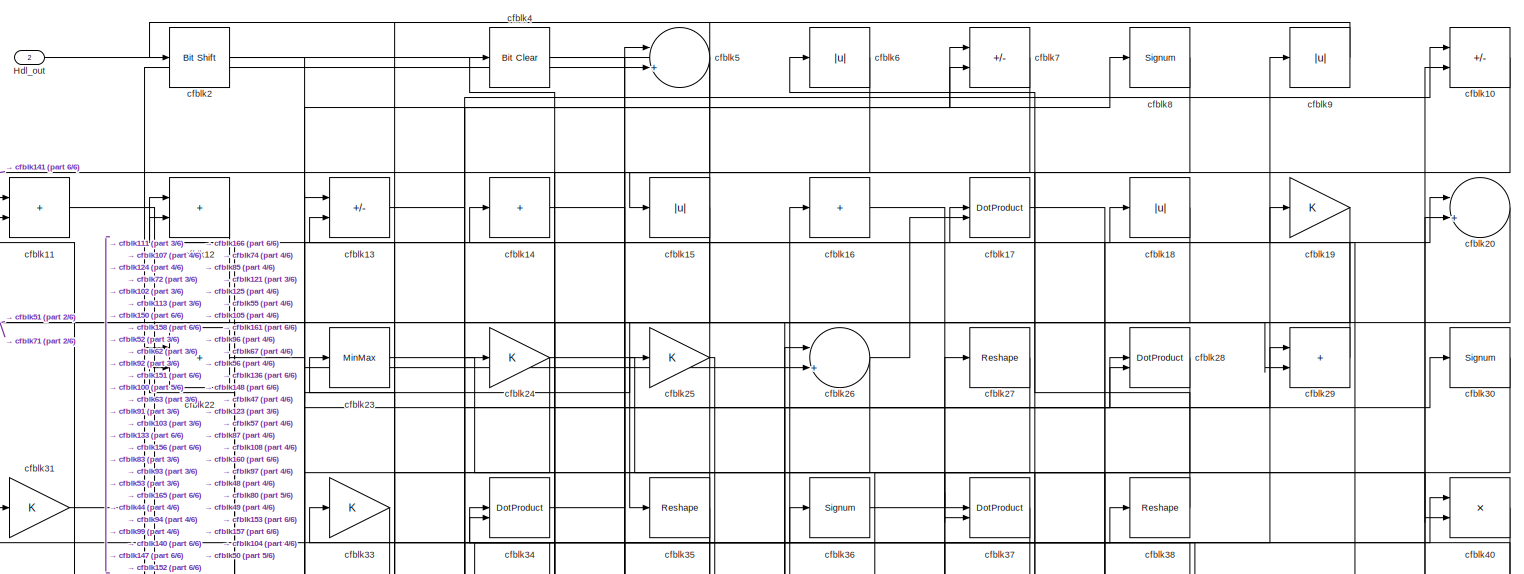
[diagram: root canvas - part 1/6, full width, top band]
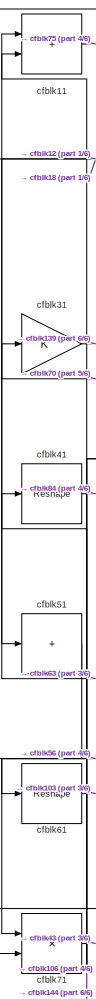
[diagram: root canvas - part 2/6, top left region]
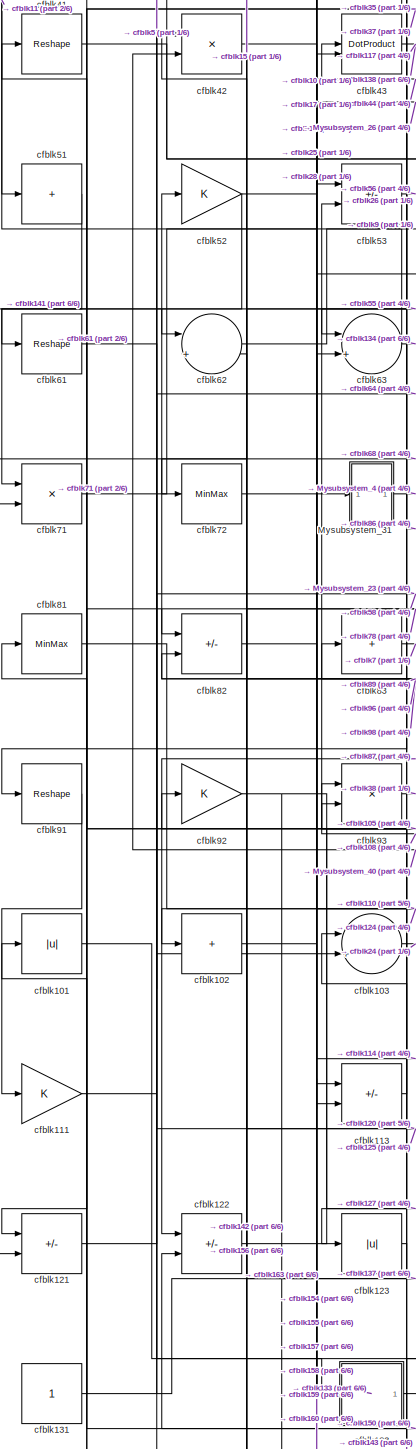
[diagram: root canvas - part 3/6, middle left region]
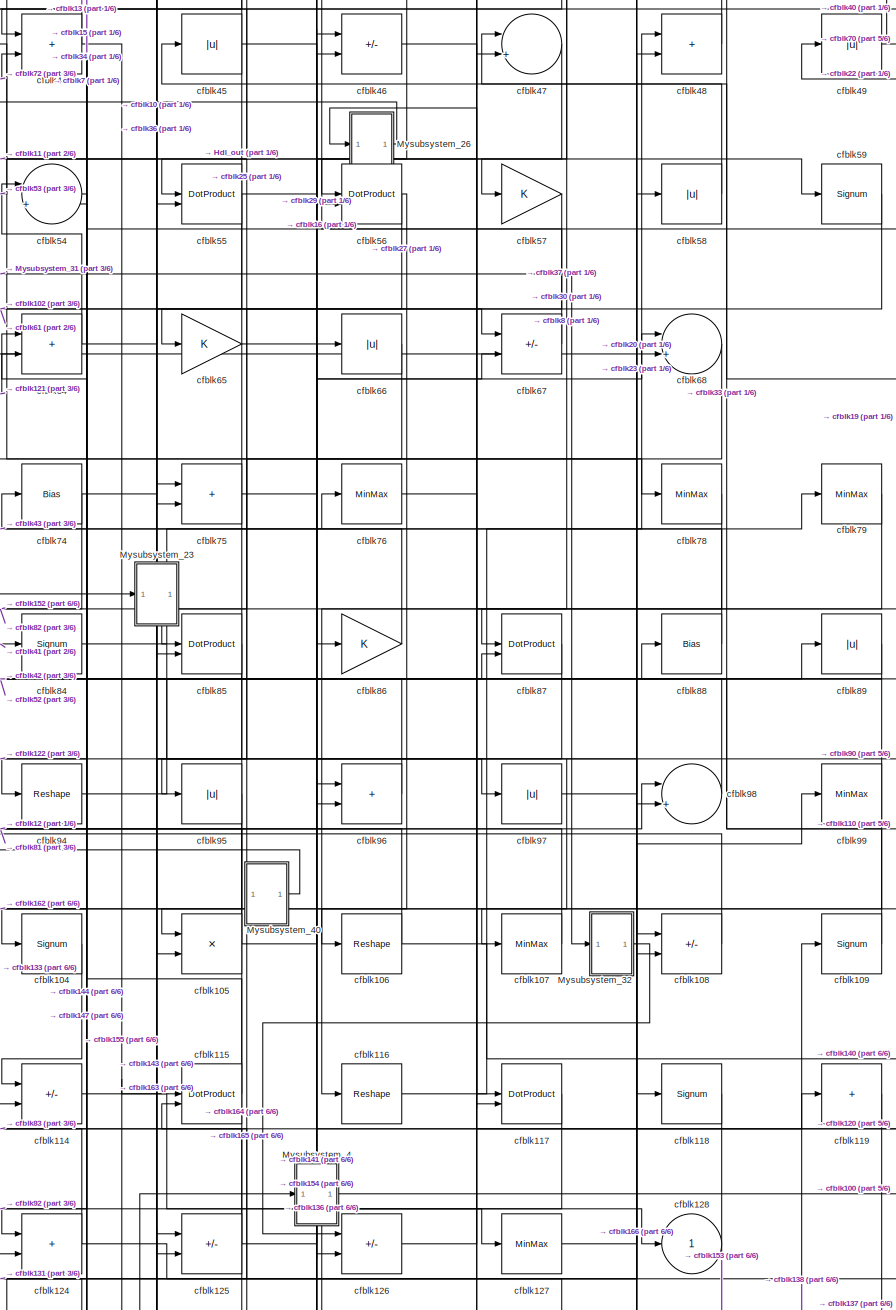
[diagram: root canvas - part 4/6, central region]
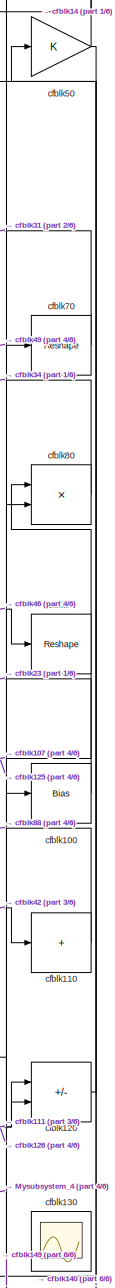
[diagram: root canvas - part 5/6, middle right region]
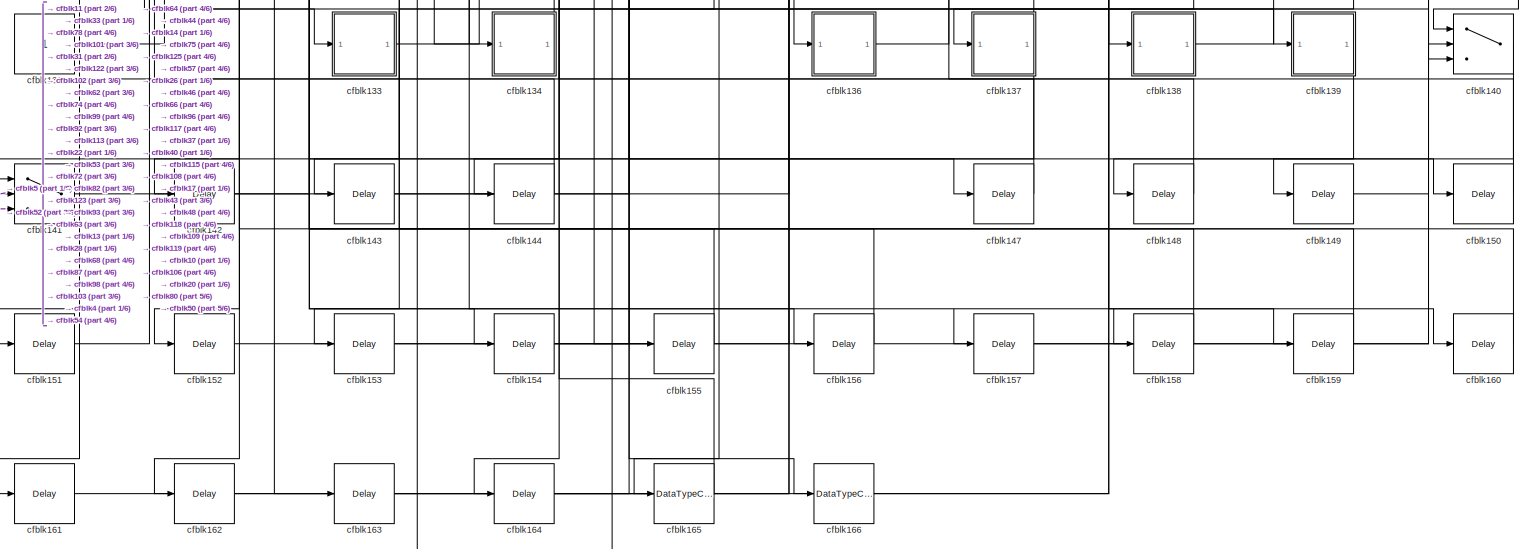
[diagram: root canvas - part 6/6, full width, bottom band]
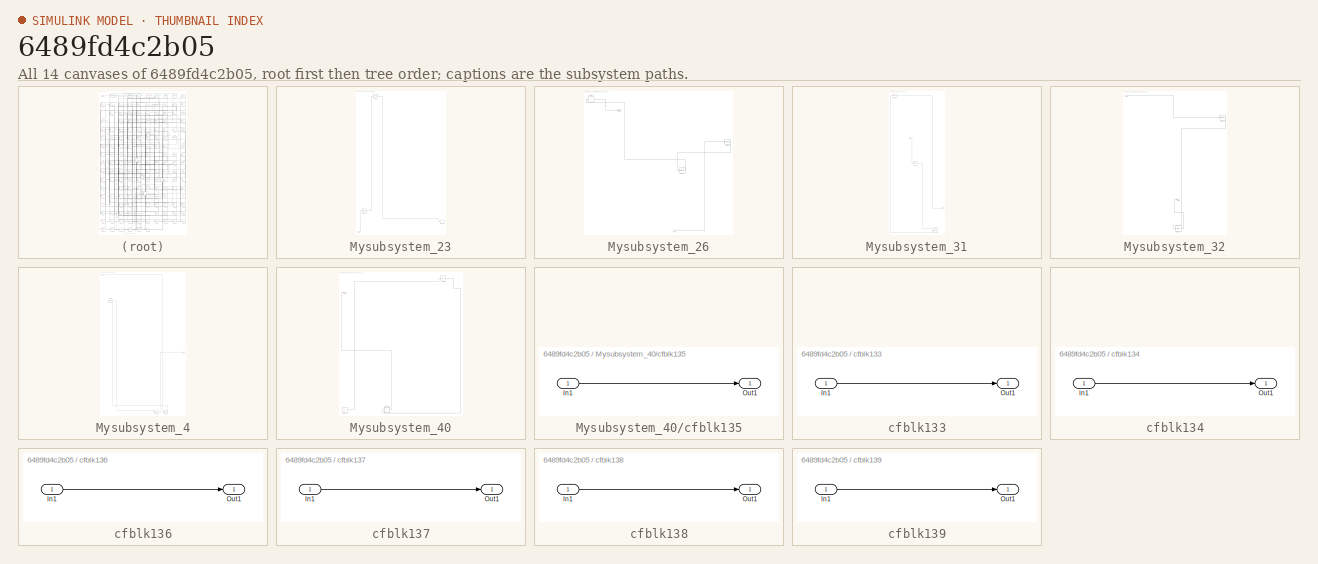
[diagram: thumbnail index - all 14 canvases of the model, root first then tree order]
MODEL slx_6489fd4c2b05
KIND model
CONFIG AbsTol = auto
CONFIG EnableMultiTasking = off
CONFIG FixedStep = auto
CONFIG MaxStep = auto
CONFIG MinStep = auto
CONFIG RelTol = 1e-3
CONFIG SampleTimeConstraint = Unconstrained
CONFIG SolverName = VariableStepAuto
CONFIG StartTime = 0.0
CONFIG StopTime = 10.0
BLOCK [Outport] Hdl_out
  OutDataTypeStr = uint8
  Port = 2
BLOCK [SubSystem] Mysubsystem_23
  RTWFcnName = Mysubsystem_23
  RTWFcnNameOpts = User specified
  RTWFileNameOpts = Use function name
  RTWSystemCode = Reusable function
  TreatAsAtomicUnit = on
BLOCK [Inport] Mysubsystem_23/In1
BLOCK [MinMax] Mysubsystem_23/cfblk112
BLOCK [Terminator] Mysubsystem_23/cfblk129
BLOCK [Reference] Mysubsystem_23/cfblk3  REF=hdlsllib/Logic and Bit
Operations/Detect Rise
Nonnegative
  SourceBlock = hdlsllib/Logic and Bit\nOperations/Detect Rise\nNonnegative
  SourceType = Detect Rise Nonnegative
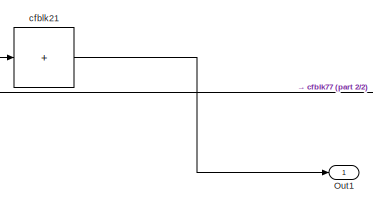
[diagram: Mysubsystem_26 - part 1/2, top left region]
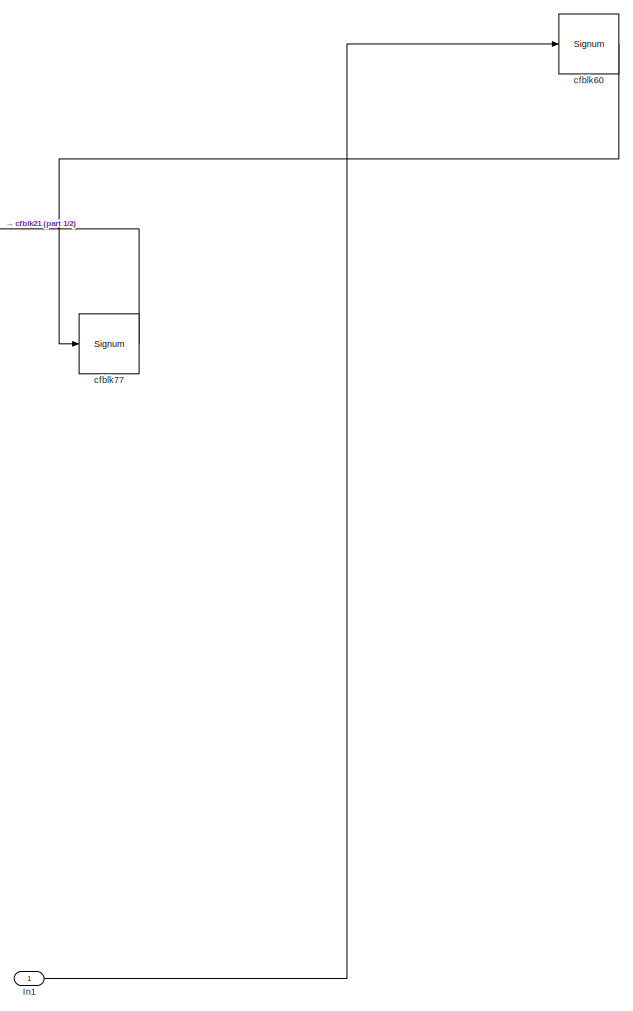
[diagram: Mysubsystem_26 - part 2/2, middle right region]
BLOCK [SubSystem] Mysubsystem_26
  RTWFcnName = Mysubsystem_26
  RTWFcnNameOpts = User specified
  RTWFileNameOpts = Use function name
  RTWSystemCode = Reusable function
  TreatAsAtomicUnit = on
BLOCK [Inport] Mysubsystem_26/In1
BLOCK [Outport] Mysubsystem_26/Out1
BLOCK [Sum] Mysubsystem_26/cfblk21
  IconShape = rectangular
  Inputs = +
BLOCK [Signum] Mysubsystem_26/cfblk60
BLOCK [Signum] Mysubsystem_26/cfblk77
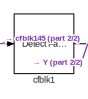
[diagram: Mysubsystem_31 - part 1/2, top left region]
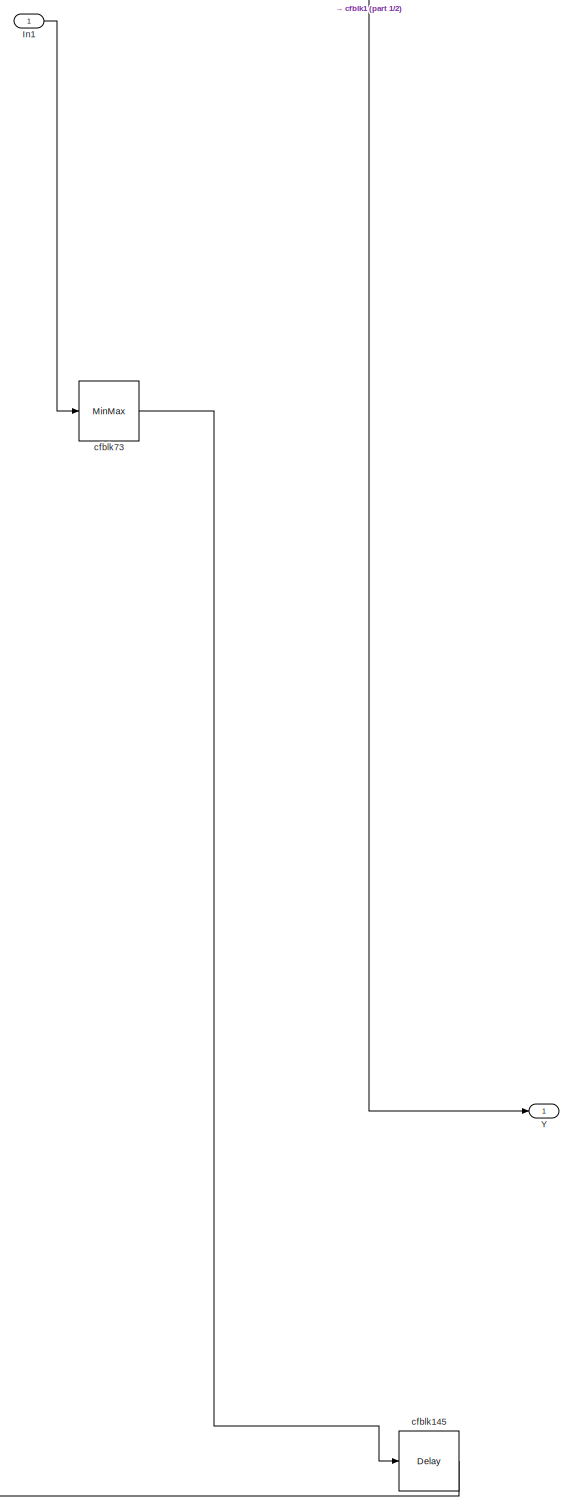
[diagram: Mysubsystem_31 - part 2/2, central region]
BLOCK [SubSystem] Mysubsystem_31
  RTWFcnName = Mysubsystem_31
  RTWFcnNameOpts = User specified
  RTWFileNameOpts = Use function name
  RTWSystemCode = Reusable function
  TreatAsAtomicUnit = on
BLOCK [Inport] Mysubsystem_31/In1
BLOCK [Outport] Mysubsystem_31/Y
BLOCK [Reference] Mysubsystem_31/cfblk1  REF=hdlsllib/Logic and Bit
Operations/Detect Fall
Nonpositive
  SourceBlock = hdlsllib/Logic and Bit\nOperations/Detect Fall\nNonpositive
  SourceType = Detect Fall Nonpositive
BLOCK [Delay] Mysubsystem_31/cfblk145
  InputPortMap = u0
  SampleTime = 1
BLOCK [MinMax] Mysubsystem_31/cfblk73
BLOCK [SubSystem] Mysubsystem_32
  RTWFcnName = Mysubsystem_32
  RTWFcnNameOpts = User specified
  RTWFileNameOpts = Use function name
  RTWSystemCode = Reusable function
  TreatAsAtomicUnit = on
BLOCK [Inport] Mysubsystem_32/In1
BLOCK [Outport] Mysubsystem_32/Out1
BLOCK [Delay] Mysubsystem_32/cfblk146
  InputPortMap = u0
  SampleTime = 1
BLOCK [MinMax] Mysubsystem_32/cfblk69
BLOCK [SubSystem] Mysubsystem_4
  RTWFcnName = Mysubsystem_4
  RTWFcnNameOpts = User specified
  RTWFileNameOpts = Use function name
  RTWSystemCode = Reusable function
  TreatAsAtomicUnit = on
BLOCK [Inport] Mysubsystem_4/In1
BLOCK [Outport] Mysubsystem_4/Out1
BLOCK [DataTypeConversion] Mysubsystem_4/cfblk167
  OutDataTypeStr = uint8
  RndMeth = Floor
  SaturateOnIntegerOverflow = off
BLOCK [DataTypeConversion] Mysubsystem_4/cfblk168
  OutDataTypeStr = uint8
  RndMeth = Floor
  SaturateOnIntegerOverflow = off
BLOCK [MinMax] Mysubsystem_4/cfblk32
BLOCK [SubSystem] Mysubsystem_40
  RTWFcnName = Mysubsystem_40
  RTWFcnNameOpts = User specified
  RTWFileNameOpts = Use function name
  RTWSystemCode = Reusable function
  TreatAsAtomicUnit = on
BLOCK [Outport] Mysubsystem_40/Out1
BLOCK [Constant] Mysubsystem_40/cfblk132
  SampleTime = -1
BLOCK [SubSystem] Mysubsystem_40/cfblk135
  LibrarySourceBlock = hdlsllib/Ports &\nSubsystems/Subsystem
BLOCK [Inport] Mysubsystem_40/cfblk135/In1
BLOCK [Outport] Mysubsystem_40/cfblk135/Out1
BLOCK [Abs] Mysubsystem_40/cfblk39
  SaturateOnIntegerOverflow = off
BLOCK [Sum] cfblk10
  IconShape = rectangular
  Inputs = +-
  OutDataTypeStr = uint8
BLOCK [Bias] cfblk100
  Bias = 0.0
  SaturateOnIntegerOverflow = off
BLOCK [Abs] cfblk101
  OutDataTypeStr = uint8
  SaturateOnIntegerOverflow = off
BLOCK [Sum] cfblk102
  IconShape = rectangular
  Inputs = +
  OutDataTypeStr = uint8
BLOCK [Sum] cfblk103
  Inputs = |++
  OutDataTypeStr = uint8
BLOCK [Signum] cfblk104
BLOCK [Product] cfblk105
  Inputs = */
  OutDataTypeStr = uint8
  RndMeth = Zero
  SaturateOnIntegerOverflow = on
BLOCK [Reshape] cfblk106
BLOCK [MinMax] cfblk107
  OutDataTypeStr = uint8
BLOCK [Sum] cfblk108
  IconShape = rectangular
  Inputs = +-
  OutDataTypeStr = uint8
BLOCK [Signum] cfblk109
BLOCK [Sum] cfblk11
  IconShape = rectangular
  OutDataTypeStr = uint8
BLOCK [Sum] cfblk110
  IconShape = rectangular
  Inputs = +
  OutDataTypeStr = uint8
BLOCK [Gain] cfblk111
  OutDataTypeStr = uint8
BLOCK [Sum] cfblk113
  IconShape = rectangular
  Inputs = +-
  OutDataTypeStr = uint8
BLOCK [Sum] cfblk114
  IconShape = rectangular
  Inputs = +-
  OutDataTypeStr = uint8
BLOCK [DotProduct] cfblk115
  OutDataTypeStr = uint8
BLOCK [Reshape] cfblk116
BLOCK [DotProduct] cfblk117
  OutDataTypeStr = uint8
BLOCK [Signum] cfblk118
BLOCK [Sum] cfblk119
  IconShape = rectangular
  Inputs = +
  OutDataTypeStr = uint8
BLOCK [Sum] cfblk12
  IconShape = rectangular
  OutDataTypeStr = uint8
BLOCK [Sum] cfblk120
  IconShape = rectangular
  Inputs = +-
  OutDataTypeStr = uint8
BLOCK [Sum] cfblk121
  IconShape = rectangular
  Inputs = +-
  OutDataTypeStr = uint8
BLOCK [Sum] cfblk122
  IconShape = rectangular
  Inputs = +-
  OutDataTypeStr = uint8
BLOCK [Abs] cfblk123
  OutDataTypeStr = uint8
  SaturateOnIntegerOverflow = off
BLOCK [Sum] cfblk124
  IconShape = rectangular
  OutDataTypeStr = uint8
BLOCK [Sum] cfblk125
  IconShape = rectangular
  Inputs = +-
  OutDataTypeStr = uint8
BLOCK [Sum] cfblk126
  IconShape = rectangular
  Inputs = +-
  OutDataTypeStr = uint8
BLOCK [MinMax] cfblk127
  OutDataTypeStr = uint8
BLOCK [Outport] cfblk128
  OutDataTypeStr = uint8
  VectorParamsAs1DForOutWhenUnconnected = off
BLOCK [Sum] cfblk13
  IconShape = rectangular
  Inputs = +-
  OutDataTypeStr = uint8
BLOCK [Scope] cfblk130
  Floating = on
  NumInputPorts = 1
  ScopeSpecificationString = Simulink.scopes.TimeScopeBlockCfg('CurrentConfiguration', extmgr.ConfigurationSet(extmgr.Configuration('Core','General UI',true,'FigureColor',[0.156862745098039 0.156862745098039 0.156862745098039]),extmgr.Configuration('Core','Source UI',true),extmgr.Configuration('Sources','WiredSimulink',true,'DataLoggingVariableName','ScopeData1','DataLoggingSaveFormat','StructureWithTime','DataLoggingLimitDat...<+2713ch>
BLOCK [Constant] cfblk131
  OutDataTypeStr = uint8
  SampleTime = -1
BLOCK [SubSystem] cfblk133
  LibrarySourceBlock = hdlsllib/Ports &\nSubsystems/Subsystem
BLOCK [Inport] cfblk133/In1
BLOCK [Outport] cfblk133/Out1
BLOCK [SubSystem] cfblk134
  LibrarySourceBlock = hdlsllib/Ports &\nSubsystems/Subsystem
BLOCK [Inport] cfblk134/In1
BLOCK [Outport] cfblk134/Out1
BLOCK [SubSystem] cfblk136
  LibrarySourceBlock = hdlsllib/Ports &\nSubsystems/Subsystem
BLOCK [Inport] cfblk136/In1
BLOCK [Outport] cfblk136/Out1
BLOCK [SubSystem] cfblk137
  LibrarySourceBlock = hdlsllib/Ports &\nSubsystems/Subsystem
BLOCK [Inport] cfblk137/In1
BLOCK [Outport] cfblk137/Out1
BLOCK [SubSystem] cfblk138
  LibrarySourceBlock = hdlsllib/Ports &\nSubsystems/Subsystem
BLOCK [Inport] cfblk138/In1
BLOCK [Outport] cfblk138/Out1
BLOCK [SubSystem] cfblk139
  LibrarySourceBlock = hdlsllib/Ports &\nSubsystems/Subsystem
BLOCK [Inport] cfblk139/In1
BLOCK [Outport] cfblk139/Out1
BLOCK [Sum] cfblk14
  IconShape = rectangular
  Inputs = +
  OutDataTypeStr = uint8
BLOCK [Switch] cfblk140
  InputSameDT = off
  OutDataTypeStr = uint8
  SaturateOnIntegerOverflow = off
BLOCK [Switch] cfblk141
  InputSameDT = off
  OutDataTypeStr = uint8
  SaturateOnIntegerOverflow = off
BLOCK [Delay] cfblk142
  InputPortMap = u0
  SampleTime = 1
BLOCK [Delay] cfblk143
  InputPortMap = u0
  SampleTime = 1
BLOCK [Delay] cfblk144
  InputPortMap = u0
  SampleTime = 1
BLOCK [Delay] cfblk147
  InputPortMap = u0
  SampleTime = 1
BLOCK [Delay] cfblk148
  InputPortMap = u0
  SampleTime = 1
BLOCK [Delay] cfblk149
  InputPortMap = u0
  SampleTime = 1
BLOCK [Abs] cfblk15
  OutDataTypeStr = uint8
  SaturateOnIntegerOverflow = off
BLOCK [Delay] cfblk150
  InputPortMap = u0
  SampleTime = 1
BLOCK [Delay] cfblk151
  InputPortMap = u0
  SampleTime = 1
BLOCK [Delay] cfblk152
  InputPortMap = u0
  SampleTime = 1
BLOCK [Delay] cfblk153
  InputPortMap = u0
  SampleTime = 1
BLOCK [Delay] cfblk154
  InputPortMap = u0
  SampleTime = 1
BLOCK [Delay] cfblk155
  InputPortMap = u0
  SampleTime = 1
BLOCK [Delay] cfblk156
  InputPortMap = u0
  SampleTime = 1
BLOCK [Delay] cfblk157
  InputPortMap = u0
  SampleTime = 1
BLOCK [Delay] cfblk158
  InputPortMap = u0
  SampleTime = 1
BLOCK [Delay] cfblk159
  InputPortMap = u0
  SampleTime = 1
BLOCK [Sum] cfblk16
  IconShape = rectangular
  Inputs = +
  OutDataTypeStr = uint8
BLOCK [Delay] cfblk160
  InputPortMap = u0
  SampleTime = 1
BLOCK [Delay] cfblk161
  InputPortMap = u0
  SampleTime = 1
BLOCK [Delay] cfblk162
  InputPortMap = u0
  SampleTime = 1
BLOCK [Delay] cfblk163
  InputPortMap = u0
  SampleTime = 1
BLOCK [Delay] cfblk164
  InputPortMap = u0
  SampleTime = 1
BLOCK [DataTypeConversion] cfblk165
  OutDataTypeStr = uint8
  RndMeth = Floor
  SaturateOnIntegerOverflow = off
BLOCK [DataTypeConversion] cfblk166
  OutDataTypeStr = uint8
  RndMeth = Floor
  SaturateOnIntegerOverflow = off
BLOCK [DotProduct] cfblk17
  OutDataTypeStr = uint8
BLOCK [Abs] cfblk18
  OutDataTypeStr = uint8
  SaturateOnIntegerOverflow = off
BLOCK [Gain] cfblk19
  OutDataTypeStr = uint8
BLOCK [Reference] cfblk2  REF=hdlsllib/Logic and Bit
Operations/Bit Shift
  SourceBlock = hdlsllib/Logic and Bit\nOperations/Bit Shift
  SourceType = Bit Shift
BLOCK [Sum] cfblk20
  Inputs = |++
  OutDataTypeStr = uint8
BLOCK [Sum] cfblk22
  IconShape = rectangular
  OutDataTypeStr = uint8
BLOCK [MinMax] cfblk23
  OutDataTypeStr = uint8
BLOCK [Gain] cfblk24
  OutDataTypeStr = uint8
BLOCK [Gain] cfblk25
  OutDataTypeStr = uint8
BLOCK [Sum] cfblk26
  Inputs = |++
  OutDataTypeStr = uint8
BLOCK [Reshape] cfblk27
BLOCK [DotProduct] cfblk28
  OutDataTypeStr = uint8
BLOCK [Sum] cfblk29
  IconShape = rectangular
  OutDataTypeStr = uint8
BLOCK [Signum] cfblk30
BLOCK [Gain] cfblk31
  OutDataTypeStr = uint8
BLOCK [Gain] cfblk33
  OutDataTypeStr = uint8
BLOCK [DotProduct] cfblk34
  OutDataTypeStr = uint8
BLOCK [Reshape] cfblk35
BLOCK [Signum] cfblk36
BLOCK [DotProduct] cfblk37
  OutDataTypeStr = uint8
BLOCK [Reshape] cfblk38
BLOCK [Reference] cfblk4  REF=simulink/Logic and Bit
Operations/Bit Clear
  LibrarySourceBlock = hdlsllib/Logic and Bit\nOperations/Bit Clear
  SourceBlock = simulink/Logic and Bit\nOperations/Bit Clear
  SourceType = Bit Clear
BLOCK [Product] cfblk40
  Inputs = */
  OutDataTypeStr = uint8
  RndMeth = Zero
  SaturateOnIntegerOverflow = on
BLOCK [Reshape] cfblk41
BLOCK [Product] cfblk42
  Inputs = */
  OutDataTypeStr = uint8
  RndMeth = Zero
  SaturateOnIntegerOverflow = on
BLOCK [DotProduct] cfblk43
  OutDataTypeStr = uint8
BLOCK [Sum] cfblk44
  IconShape = rectangular
  OutDataTypeStr = uint8
BLOCK [Abs] cfblk45
  OutDataTypeStr = uint8
  SaturateOnIntegerOverflow = off
BLOCK [Sum] cfblk46
  IconShape = rectangular
  Inputs = +-
  OutDataTypeStr = uint8
BLOCK [Sum] cfblk47
  Inputs = |++
  OutDataTypeStr = uint8
BLOCK [Sum] cfblk48
  IconShape = rectangular
  OutDataTypeStr = uint8
BLOCK [Abs] cfblk49
  OutDataTypeStr = uint8
  SaturateOnIntegerOverflow = off
BLOCK [Sum] cfblk5
  Inputs = |++
  OutDataTypeStr = uint8
BLOCK [Gain] cfblk50
  OutDataTypeStr = uint8
BLOCK [Sum] cfblk51
  IconShape = rectangular
  Inputs = +
  OutDataTypeStr = uint8
BLOCK [Gain] cfblk52
  OutDataTypeStr = uint8
BLOCK [Sum] cfblk53
  IconShape = rectangular
  Inputs = +-
  OutDataTypeStr = uint8
BLOCK [Sum] cfblk54
  Inputs = |++
  OutDataTypeStr = uint8
BLOCK [DotProduct] cfblk55
  OutDataTypeStr = uint8
BLOCK [DotProduct] cfblk56
  OutDataTypeStr = uint8
BLOCK [Gain] cfblk57
  OutDataTypeStr = uint8
BLOCK [Abs] cfblk58
  OutDataTypeStr = uint8
  SaturateOnIntegerOverflow = off
BLOCK [Signum] cfblk59
BLOCK [Abs] cfblk6
  OutDataTypeStr = uint8
  SaturateOnIntegerOverflow = off
BLOCK [Reshape] cfblk61
BLOCK [Sum] cfblk62
  Inputs = |++
  OutDataTypeStr = uint8
BLOCK [Sum] cfblk63
  Inputs = |++
  OutDataTypeStr = uint8
BLOCK [Sum] cfblk64
  IconShape = rectangular
  OutDataTypeStr = uint8
BLOCK [Gain] cfblk65
  OutDataTypeStr = uint8
BLOCK [Abs] cfblk66
  OutDataTypeStr = uint8
  SaturateOnIntegerOverflow = off
BLOCK [Sum] cfblk67
  IconShape = rectangular
  Inputs = +-
  OutDataTypeStr = uint8
BLOCK [Sum] cfblk68
  Inputs = |++
  OutDataTypeStr = uint8
BLOCK [Sum] cfblk7
  IconShape = rectangular
  Inputs = +-
  OutDataTypeStr = uint8
BLOCK [Reshape] cfblk70
BLOCK [Product] cfblk71
  Inputs = */
  OutDataTypeStr = uint8
  RndMeth = Zero
  SaturateOnIntegerOverflow = on
BLOCK [MinMax] cfblk72
  OutDataTypeStr = uint8
BLOCK [Bias] cfblk74
  Bias = 0.0
  SaturateOnIntegerOverflow = off
BLOCK [Sum] cfblk75
  IconShape = rectangular
  OutDataTypeStr = uint8
BLOCK [MinMax] cfblk76
  OutDataTypeStr = uint8
BLOCK [MinMax] cfblk78
  OutDataTypeStr = uint8
BLOCK [MinMax] cfblk79
  OutDataTypeStr = uint8
BLOCK [Signum] cfblk8
BLOCK [Product] cfblk80
  Inputs = */
  OutDataTypeStr = uint8
  RndMeth = Zero
  SaturateOnIntegerOverflow = on
BLOCK [MinMax] cfblk81
  OutDataTypeStr = uint8
BLOCK [Sum] cfblk82
  IconShape = rectangular
  Inputs = +-
  OutDataTypeStr = uint8
BLOCK [Sum] cfblk83
  IconShape = rectangular
  Inputs = +
  OutDataTypeStr = uint8
BLOCK [Signum] cfblk84
BLOCK [DotProduct] cfblk85
  OutDataTypeStr = uint8
BLOCK [Gain] cfblk86
  OutDataTypeStr = uint8
BLOCK [DotProduct] cfblk87
  OutDataTypeStr = uint8
BLOCK [Bias] cfblk88
  Bias = 0.0
  SaturateOnIntegerOverflow = off
BLOCK [Abs] cfblk89
  OutDataTypeStr = uint8
  SaturateOnIntegerOverflow = off
BLOCK [Abs] cfblk9
  OutDataTypeStr = uint8
  SaturateOnIntegerOverflow = off
BLOCK [Reshape] cfblk90
BLOCK [Reshape] cfblk91
BLOCK [Gain] cfblk92
  OutDataTypeStr = uint8
BLOCK [Product] cfblk93
  Inputs = */
  OutDataTypeStr = uint8
  RndMeth = Zero
  SaturateOnIntegerOverflow = on
BLOCK [Reshape] cfblk94
BLOCK [Abs] cfblk95
  OutDataTypeStr = uint8
  SaturateOnIntegerOverflow = off
BLOCK [Sum] cfblk96
  IconShape = rectangular
  OutDataTypeStr = uint8
BLOCK [Abs] cfblk97
  OutDataTypeStr = uint8
  SaturateOnIntegerOverflow = off
BLOCK [Sum] cfblk98
  Inputs = |++
  OutDataTypeStr = uint8
BLOCK [MinMax] cfblk99
  OutDataTypeStr = uint8
LINE Mysubsystem_23/In1:1 -> Mysubsystem_23/cfblk112:1
LINE Mysubsystem_23/cfblk112:1 -> Mysubsystem_23/cfblk3:1
LINE Mysubsystem_23/cfblk3:1 -> Mysubsystem_23/cfblk129:1
LINE Mysubsystem_26/In1:1 -> Mysubsystem_26/cfblk60:1
LINE Mysubsystem_26/cfblk21:1 -> Mysubsystem_26/Out1:1
LINE Mysubsystem_26/cfblk60:1 -> Mysubsystem_26/cfblk77:1
LINE Mysubsystem_26/cfblk77:1 -> Mysubsystem_26/cfblk21:1
NET Mysubsystem_26:1 -> Mysubsystem_31:1, Mysubsystem_32:1
LINE Mysubsystem_31/In1:1 -> Mysubsystem_31/cfblk73:1
LINE Mysubsystem_31/cfblk145:1 -> Mysubsystem_31/cfblk1:1
LINE Mysubsystem_31/cfblk1:1 -> Mysubsystem_31/Y:1
LINE Mysubsystem_31/cfblk73:1 -> Mysubsystem_31/cfblk145:1
LINE Mysubsystem_31:1 -> Mysubsystem_4:1
LINE Mysubsystem_32/In1:1 -> Mysubsystem_32/cfblk69:1
LINE Mysubsystem_32/cfblk146:1 -> Mysubsystem_32/Out1:1
LINE Mysubsystem_32/cfblk69:1 -> Mysubsystem_32/cfblk146:1
LINE Mysubsystem_32:1 -> cfblk126:1
LINE Mysubsystem_4/In1:1 -> Mysubsystem_4/cfblk168:1
LINE Mysubsystem_4/cfblk167:1 -> Mysubsystem_4/Out1:1
LINE Mysubsystem_4/cfblk168:1 -> Mysubsystem_4/cfblk32:1
LINE Mysubsystem_4/cfblk32:1 -> Mysubsystem_4/cfblk167:1
LINE Mysubsystem_40/cfblk132:1 -> Mysubsystem_40/cfblk39:1
LINE Mysubsystem_40/cfblk135/In1:1 -> Mysubsystem_40/cfblk135/Out1:1
LINE Mysubsystem_40/cfblk135:1 -> Mysubsystem_40/Out1:1
LINE Mysubsystem_40/cfblk39:1 -> Mysubsystem_40/cfblk135:1
LINE Mysubsystem_40:1 -> cfblk42:2
LINE Mysubsystem_4:1 -> cfblk100:1
LINE cfblk100:1 -> cfblk23:1
LINE cfblk101:1 -> cfblk133:1
NET cfblk102:1 -> cfblk114:2, cfblk142:1, cfblk28:1
LINE cfblk103:1 -> cfblk24:1
LINE cfblk104:1 -> cfblk114:1
NET cfblk105:1 -> cfblk29:1, cfblk81:1
NET cfblk106:1 -> cfblk140:3, cfblk41:1
LINE cfblk107:1 -> cfblk12:2
LINE cfblk108:1 -> cfblk53:2
LINE cfblk109:1 -> cfblk47:1
LINE cfblk10:1 -> cfblk55:2
LINE cfblk110:1 -> cfblk88:1
NET cfblk111:1 -> cfblk120:2, cfblk5:2
LINE cfblk113:1 -> cfblk93:1
LINE cfblk114:1 -> cfblk128:1
LINE cfblk115:1 -> cfblk54:2
LINE cfblk116:1 -> cfblk48:1
LINE cfblk117:1 -> cfblk136:1
LINE cfblk118:1 -> cfblk153:1
LINE cfblk119:1 -> cfblk137:1
LINE cfblk11:1 -> cfblk75:2
LINE cfblk120:1 -> cfblk50:1
LINE cfblk121:1 -> cfblk64:1
LINE cfblk122:1 -> cfblk98:1
LINE cfblk123:1 -> cfblk143:1
NET cfblk124:1 -> cfblk22:2, cfblk49:1
NET cfblk125:1 -> Hdl_out:1, cfblk119:1, cfblk164:1, cfblk67:2, cfblk83:1
NET cfblk126:1 -> Mysubsystem_26:1, cfblk120:1
LINE cfblk127:1 -> cfblk99:1
LINE cfblk12:1 -> cfblk71:2
NET cfblk131:1 -> Mysubsystem_23:1, cfblk101:1, cfblk58:1
LINE cfblk133/In1:1 -> cfblk133/Out1:1
NET cfblk133:1 -> cfblk28:2, cfblk68:2, cfblk87:2, cfblk98:2
LINE cfblk134/In1:1 -> cfblk134/Out1:1
LINE cfblk134:1 -> cfblk103:1
LINE cfblk136/In1:1 -> cfblk136/Out1:1
LINE cfblk136:1 -> cfblk40:1
LINE cfblk137/In1:1 -> cfblk137/Out1:1
NET cfblk137:1 -> cfblk115:2, cfblk161:1, cfblk92:1
LINE cfblk138/In1:1 -> cfblk138/Out1:1
LINE cfblk138:1 -> cfblk109:1
LINE cfblk139/In1:1 -> cfblk139/Out1:1
LINE cfblk139:1 -> cfblk149:1
NET cfblk13:1 -> cfblk156:1, cfblk29:2, cfblk7:2
LINE cfblk140:1 -> cfblk148:1
LINE cfblk141:1 -> cfblk66:1
LINE cfblk142:1 -> cfblk63:2
LINE cfblk143:1 -> cfblk75:1
LINE cfblk144:1 -> cfblk11:2
LINE cfblk147:1 -> cfblk64:2
LINE cfblk148:1 -> cfblk37:1
LINE cfblk149:1 -> cfblk80:2
NET cfblk14:1 -> cfblk140:2, cfblk147:1
LINE cfblk150:1 -> cfblk122:2
LINE cfblk151:1 -> cfblk22:1
LINE cfblk152:1 -> cfblk5:1
LINE cfblk153:1 -> cfblk10:2
LINE cfblk154:1 -> cfblk96:1
LINE cfblk155:1 -> cfblk113:1
LINE cfblk156:1 -> cfblk62:2
LINE cfblk157:1 -> cfblk20:2
LINE cfblk158:1 -> cfblk13:1
LINE cfblk159:1 -> cfblk93:2
NET cfblk15:1 -> cfblk44:1, cfblk72:1
LINE cfblk160:1 -> cfblk53:1
LINE cfblk161:1 -> cfblk26:1
LINE cfblk162:1 -> cfblk46:2
LINE cfblk163:1 -> cfblk125:1
LINE cfblk164:1 -> cfblk108:2
LINE cfblk165:1 -> cfblk4:1
LINE cfblk166:1 -> cfblk48:2
LINE cfblk16:1 -> cfblk47:2
LINE cfblk17:1 -> cfblk160:1
LINE cfblk18:1 -> cfblk51:1
LINE cfblk19:1 -> cfblk35:1
NET cfblk20:1 -> cfblk124:1, cfblk85:2, cfblk96:2
NET cfblk22:1 -> cfblk150:1, cfblk8:1
LINE cfblk23:1 -> cfblk108:1
NET cfblk24:1 -> cfblk113:2, cfblk40:2
LINE cfblk25:1 -> cfblk55:1
NET cfblk26:1 -> cfblk17:2, cfblk63:1
LINE cfblk27:1 -> cfblk56:1
LINE cfblk28:1 -> cfblk37:2
LINE cfblk29:1 -> cfblk12:1
LINE cfblk2:1 -> cfblk26:2
LINE cfblk30:1 -> cfblk87:1
LINE cfblk31:1 -> cfblk139:1
LINE cfblk33:1 -> cfblk151:1
LINE cfblk34:1 -> cfblk30:1
LINE cfblk35:1 -> cfblk121:1
LINE cfblk36:1 -> cfblk27:1
NET cfblk37:1 -> cfblk123:1, cfblk85:1
LINE cfblk38:1 -> cfblk6:1
LINE cfblk40:1 -> cfblk104:1
LINE cfblk41:1 -> cfblk84:1
LINE cfblk42:1 -> cfblk110:1
NET cfblk43:1 -> cfblk117:2, cfblk138:1
NET cfblk44:1 -> cfblk115:1, cfblk13:2, cfblk155:1
LINE cfblk45:1 -> cfblk86:1
LINE cfblk46:1 -> cfblk90:1
LINE cfblk47:1 -> cfblk126:2
LINE cfblk48:1 -> cfblk33:1
NET cfblk49:1 -> cfblk19:1, cfblk70:1
LINE cfblk4:1 -> cfblk166:1
NET cfblk50:1 -> cfblk140:1, cfblk14:1
LINE cfblk51:1 -> cfblk71:1
NET cfblk52:1 -> cfblk141:3, cfblk17:1, cfblk62:1
NET cfblk53:1 -> cfblk56:2, cfblk9:1
LINE cfblk54:1 -> cfblk144:1
NET cfblk55:1 -> cfblk102:1, cfblk59:1
NET cfblk56:1 -> cfblk106:1, cfblk61:1
LINE cfblk57:1 -> cfblk165:1
LINE cfblk58:1 -> cfblk45:1
LINE cfblk59:1 -> cfblk65:1
NET cfblk5:1 -> cfblk141:2, cfblk2:1
LINE cfblk61:1 -> cfblk103:2
NET cfblk62:1 -> cfblk10:1, cfblk25:1
NET cfblk63:1 -> cfblk11:1, cfblk134:1
NET cfblk64:1 -> cfblk54:1, cfblk67:1
LINE cfblk65:1 -> cfblk97:1
LINE cfblk66:1 -> cfblk95:1
LINE cfblk67:1 -> cfblk16:1
LINE cfblk68:1 -> cfblk121:2
LINE cfblk6:1 -> cfblk15:1
LINE cfblk70:1 -> cfblk31:1
LINE cfblk71:1 -> cfblk43:2
NET cfblk72:1 -> cfblk154:1, cfblk44:2
NET cfblk74:1 -> cfblk152:1, cfblk36:1
NET cfblk75:1 -> cfblk46:1, cfblk68:1, cfblk78:1
LINE cfblk76:1 -> cfblk117:1
NET cfblk78:1 -> cfblk141:1, cfblk82:1
LINE cfblk79:1 -> cfblk116:1
LINE cfblk7:1 -> cfblk94:1
LINE cfblk80:1 -> cfblk34:2
LINE cfblk81:1 -> cfblk124:2
NET cfblk82:1 -> cfblk157:1, cfblk158:1, cfblk159:1
LINE cfblk83:1 -> cfblk7:1
NET cfblk84:1 -> cfblk118:1, cfblk79:1
LINE cfblk85:1 -> cfblk105:2
NET cfblk86:1 -> cfblk43:1, cfblk76:1
LINE cfblk87:1 -> cfblk122:1
LINE cfblk88:1 -> cfblk74:1
LINE cfblk89:1 -> cfblk82:2
LINE cfblk8:1 -> cfblk57:1
NET cfblk90:1 -> cfblk107:1, cfblk125:2, cfblk80:1
LINE cfblk91:1 -> cfblk111:1
NET cfblk92:1 -> cfblk127:1, cfblk163:1, cfblk18:1
LINE cfblk93:1 -> cfblk38:1
LINE cfblk94:1 -> cfblk89:1
LINE cfblk95:1 -> cfblk105:1
LINE cfblk96:1 -> cfblk42:1
LINE cfblk97:1 -> cfblk20:1
LINE cfblk98:1 -> cfblk52:1
NET cfblk99:1 -> cfblk162:1, cfblk34:1
LINE cfblk9:1 -> cfblk91:1
note: NET lines group one-source signal fan-out (src -> all destinations, sorted); 1:1 wires keep LINE
